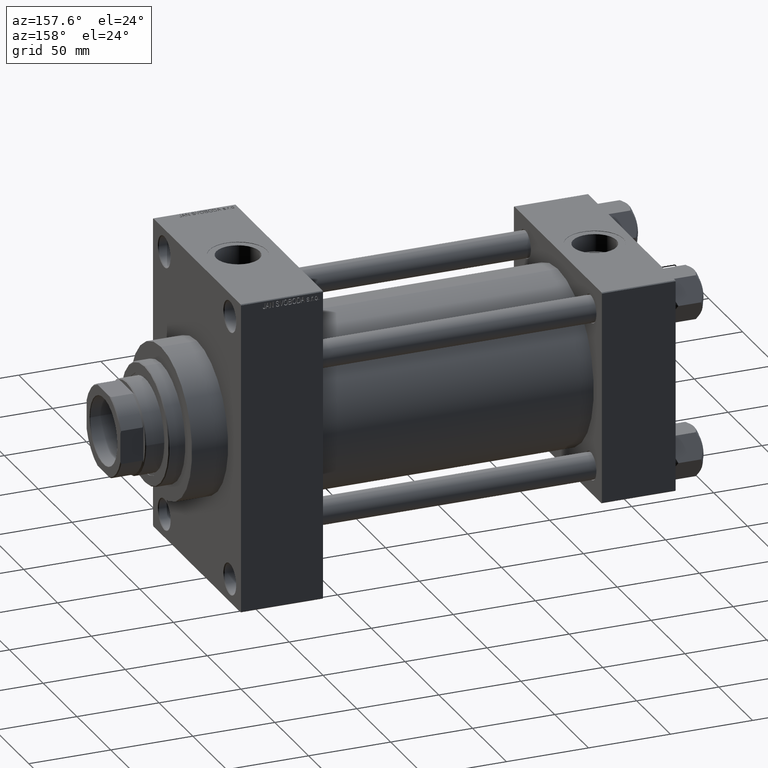
[diagram: clean part render]
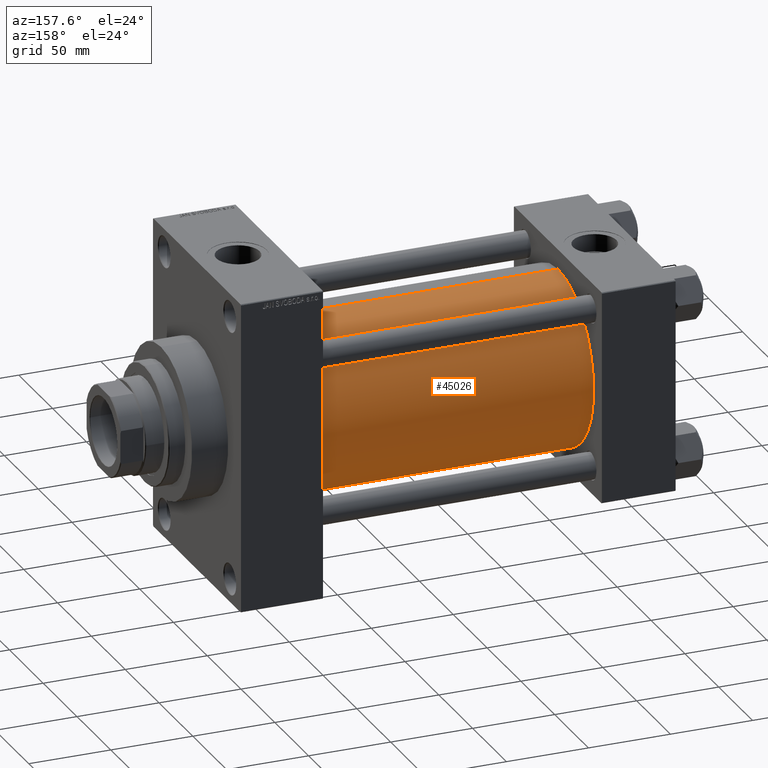
[diagram: same view with one face highlighted and labeled with its STEP entity id]
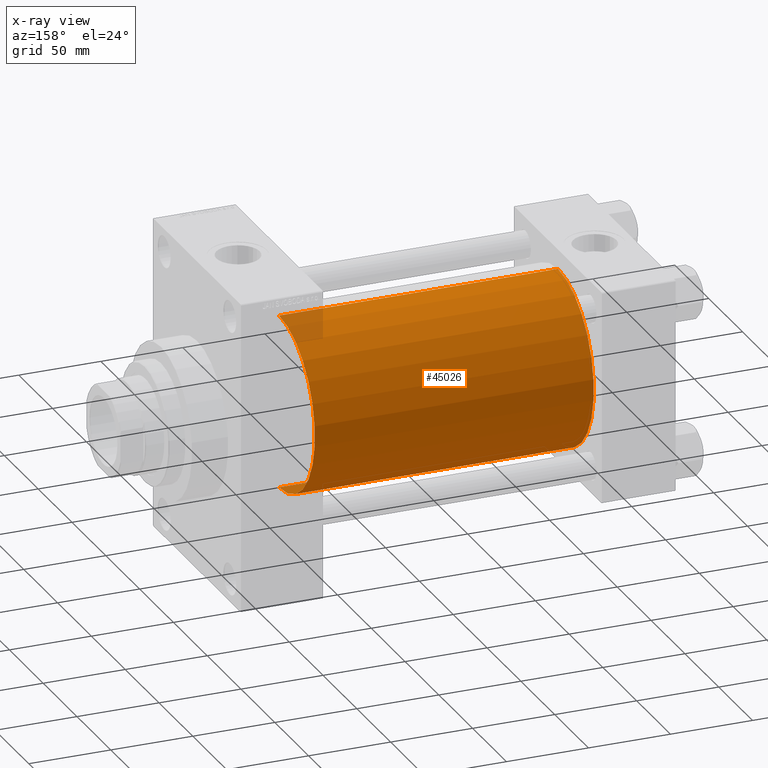
[diagram: x-ray of the same camera — body ghosted, the highlighted face saturated]
A machine part, auxiliary view. The second image highlights one B-rep face of the part: STEP entity #45026.
The next image is the same camera in x-ray: the body ghosted, the highlighted face saturated — about 2% of this face is hidden behind the body in this view.
In plain terms, the highlighted cylindrical surface (partial cylindrical patch) has radius 53 mm, axis along (-1, -0, -0).
Its self-contained STEP definition (entity closure, byte-faithful):
#1079 = CARTESIAN_POINT ( 'NONE',  ( 215.0000000000000284, -2.602085213965210642E-15, 53.00000000000000711 ) ) ;
#5218 = EDGE_CURVE ( 'NONE', #38050, #19435, #30053, .T. ) ;
#10278 = EDGE_CURVE ( 'NONE', #19435, #19467, #37304, .T. ) ;
#10860 = CARTESIAN_POINT ( 'NONE',  ( 44.99999999999998579, -2.602085213965210642E-15, 0.000000000000000000 ) ) ;
#11412 = CIRCLE ( 'NONE', #36082, 53.00000000000000711 ) ;
#12715 = CYLINDRICAL_SURFACE ( 'NONE', #33362, 53.00000000000000711 ) ;
#15899 = LINE ( 'NONE', #27228, #27613 ) ;
#19435 = VERTEX_POINT ( 'NONE', #1079 ) ;
#19467 = VERTEX_POINT ( 'NONE', #38725 ) ;
#19804 = ORIENTED_EDGE ( 'NONE', *, *, #24236, .T. ) ;
#20967 = VECTOR ( 'NONE', #32732, 1000.000000000000000 ) ;
#21731 = CARTESIAN_POINT ( 'NONE',  ( 44.99999999999998579, 3.888542821515762466E-15, -53.00000000000000711 ) ) ;
#22709 = VERTEX_POINT ( 'NONE', #21731 ) ;
#23797 = DIRECTION ( 'NONE',  ( 0.000000000000000000, 0.000000000000000000, 1.000000000000000000 ) ) ;
#24236 = EDGE_CURVE ( 'NONE', #22709, #19467, #11412, .T. ) ;
#27228 = CARTESIAN_POINT ( 'NONE',  ( 215.0000000000000284, 3.888542821515762466E-15, -53.00000000000000711 ) ) ;
#27427 = CARTESIAN_POINT ( 'NONE',  ( 215.0000000000000284, -2.602085213965210642E-15, 0.000000000000000000 ) ) ;
#27449 = DIRECTION ( 'NONE',  ( 1.000000000000000000, 0.000000000000000000, 0.000000000000000000 ) ) ;
#27613 = VECTOR ( 'NONE', #30598, 1000.000000000000000 ) ;
#28538 = EDGE_CURVE ( 'NONE', #38050, #22709, #15899, .T. ) ;
#28739 = DIRECTION ( 'NONE',  ( 1.000000000000000000, -0.000000000000000000, 0.000000000000000000 ) ) ;
#30053 = CIRCLE ( 'NONE', #38529, 53.00000000000000711 ) ;
#30070 = CARTESIAN_POINT ( 'NONE',  ( 215.0000000000000284, -2.602085213965210642E-15, 53.00000000000000711 ) ) ;
#30598 = DIRECTION ( 'NONE',  ( -1.000000000000000000, -0.000000000000000000, -0.000000000000000000 ) ) ;
#31552 = DIRECTION ( 'NONE',  ( 0.000000000000000000, 0.000000000000000000, -1.000000000000000000 ) ) ;
#32732 = DIRECTION ( 'NONE',  ( -1.000000000000000000, -0.000000000000000000, -0.000000000000000000 ) ) ;
#33362 = AXIS2_PLACEMENT_3D ( 'NONE', #27427, #42143, #23797 ) ;
#36082 = AXIS2_PLACEMENT_3D ( 'NONE', #10860, #28739, #39362 ) ;
#37181 = CARTESIAN_POINT ( 'NONE',  ( 215.0000000000000284, 3.888542821515762466E-15, -53.00000000000000711 ) ) ;
#37304 = LINE ( 'NONE', #30070, #20967 ) ;
#37523 = ORIENTED_EDGE ( 'NONE', *, *, #5218, .F. ) ;
#38037 = FACE_OUTER_BOUND ( 'NONE', #45946, .T. ) ;
#38050 = VERTEX_POINT ( 'NONE', #37181 ) ;
#38529 = AXIS2_PLACEMENT_3D ( 'NONE', #46749, #27449, #31552 ) ;
#38725 = CARTESIAN_POINT ( 'NONE',  ( 44.99999999999998579, -2.602085213965210642E-15, 53.00000000000000711 ) ) ;
#39362 = DIRECTION ( 'NONE',  ( 0.000000000000000000, 0.000000000000000000, 1.000000000000000000 ) ) ;
#41696 = ORIENTED_EDGE ( 'NONE', *, *, #28538, .T. ) ;
#42143 = DIRECTION ( 'NONE',  ( -1.000000000000000000, -0.000000000000000000, -0.000000000000000000 ) ) ;
#44492 = ORIENTED_EDGE ( 'NONE', *, *, #10278, .F. ) ;
#45026 = ADVANCED_FACE ( 'NONE', ( #38037 ), #12715, .T. ) ;
#45946 = EDGE_LOOP ( 'NONE', ( #37523, #41696, #19804, #44492 ) ) ;
#46749 = CARTESIAN_POINT ( 'NONE',  ( 215.0000000000000284, -2.602085213965210642E-15, 0.000000000000000000 ) ) ;